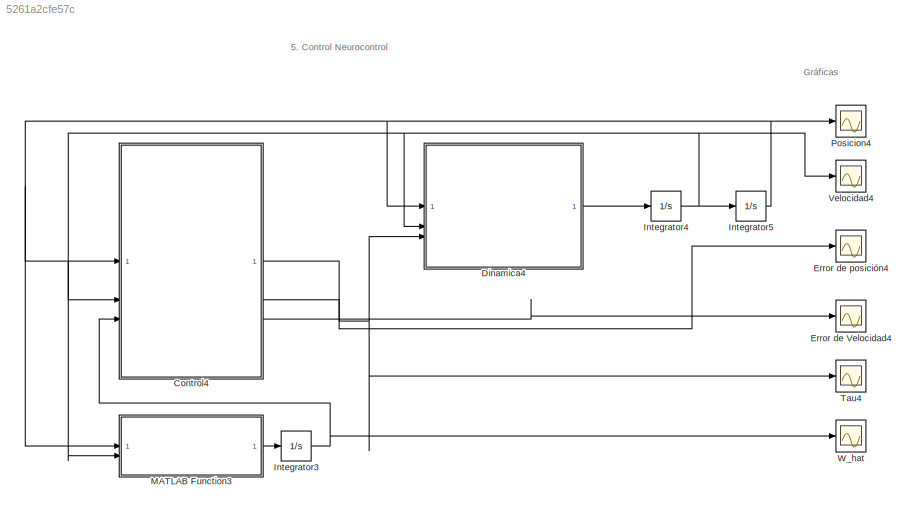
MODEL slx_5261a2cfe57c
KIND model
CONFIG AbsTol = auto
CONFIG EnableMultiTasking = off
CONFIG FixedStep = auto
CONFIG MaxStep = auto
CONFIG MinStep = auto
CONFIG RelTol = 1e-3
CONFIG SampleTimeConstraint = Unconstrained
CONFIG SolverName = VariableStepAuto
CONFIG StartTime = 0.0
CONFIG StopTime = 10.0
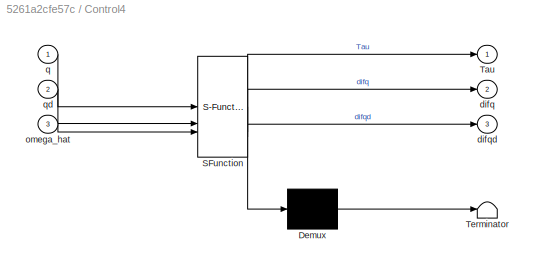
BLOCK [SubSystem] Control4
  ErrorFcn = Stateflow.Translate.translate
  PermitHierarchicalResolution = ExplicitOnly
  SFBlockType = MATLAB Function
  TreatAsAtomicUnit = on
BLOCK [Demux] Control4/ Demux 
  Outputs = 1
BLOCK [S-Function] Control4/ SFunction 
  EnableBusSupport = on
  FunctionName = sf_sfun
  PortCounts = [3 4]
  SFcnIsStateOwnerBlock = off
  SFunctionDeploymentMode = off
  Tag = Stateflow S-Function 10
BLOCK [Terminator] Control4/ Terminator 
BLOCK [Outport] Control4/Tau
BLOCK [Outport] Control4/difq
  Port = 2
BLOCK [Outport] Control4/difqd
  Port = 3
BLOCK [Inport] Control4/omega_hat
  Port = 3
BLOCK [Inport] Control4/q
BLOCK [Inport] Control4/qd
  Port = 2
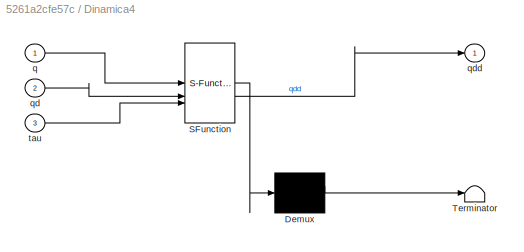
BLOCK [SubSystem] Dinamica4
  ErrorFcn = Stateflow.Translate.translate
  PermitHierarchicalResolution = ExplicitOnly
  SFBlockType = MATLAB Function
  TreatAsAtomicUnit = on
BLOCK [Demux] Dinamica4/ Demux 
  Outputs = 1
BLOCK [S-Function] Dinamica4/ SFunction 
  EnableBusSupport = on
  FunctionName = sf_sfun
  PortCounts = [3 2]
  SFcnIsStateOwnerBlock = off
  SFunctionDeploymentMode = off
  Tag = Stateflow S-Function 11
BLOCK [Terminator] Dinamica4/ Terminator 
BLOCK [Inport] Dinamica4/q
BLOCK [Inport] Dinamica4/qd
  Port = 2
BLOCK [Outport] Dinamica4/qdd
BLOCK [Inport] Dinamica4/tau
  Port = 3
BLOCK [Scope] Error de Velocidad4
  Floating = off
  NumInputPorts = 1
  ScopeSpecificationString = Simulink.scopes.TimeScopeBlockCfg('CurrentConfiguration', extmgr.ConfigurationSet(extmgr.Configuration('Core','General UI',true,'FigureColor',[1 1 1]),extmgr.Configuration('Core','Source UI',true),extmgr.Configuration('Sources','WiredSimulink',true,'DataLoggingVariableName','ScopeData1'),extmgr.Configuration('Visuals','Time Domain',true,'SerializedDisplays',{struct('MinYLimReal','-5.01131','MaxYLi...<+2502ch>
BLOCK [Scope] Error de posición4
  Floating = off
  NumInputPorts = 1
  ScopeSpecificationString = Simulink.scopes.TimeScopeBlockCfg('CurrentConfiguration', extmgr.ConfigurationSet(extmgr.Configuration('Core','General UI',true,'FigureColor',[1 1 1]),extmgr.Configuration('Core','Source UI',true),extmgr.Configuration('Sources','WiredSimulink',true,'DataLoggingVariableName','ScopeData2'),extmgr.Configuration('Visuals','Time Domain',true,'SerializedDisplays',{struct('MinYLimReal','-2.25406','MaxYLi...<+2585ch>
BLOCK [Integrator] Integrator3
BLOCK [Integrator] Integrator4
  InitialCondition = [0;0;0]
BLOCK [Integrator] Integrator5
  InitialCondition = [0;0;0]
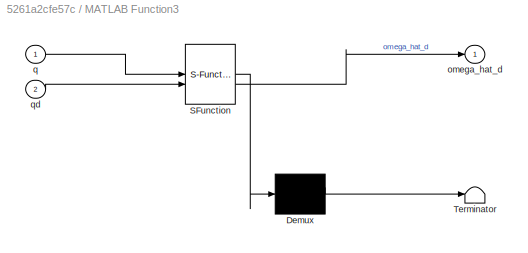
BLOCK [SubSystem] MATLAB Function3
  ErrorFcn = Stateflow.Translate.translate
  PermitHierarchicalResolution = ExplicitOnly
  SFBlockType = MATLAB Function
  TreatAsAtomicUnit = on
BLOCK [Demux] MATLAB Function3/ Demux 
  Outputs = 1
BLOCK [S-Function] MATLAB Function3/ SFunction 
  EnableBusSupport = on
  FunctionName = sf_sfun
  PortCounts = [2 2]
  SFcnIsStateOwnerBlock = off
  SFunctionDeploymentMode = off
  Tag = Stateflow S-Function 12
BLOCK [Terminator] MATLAB Function3/ Terminator 
BLOCK [Outport] MATLAB Function3/omega_hat_d
BLOCK [Inport] MATLAB Function3/q
BLOCK [Inport] MATLAB Function3/qd
  Port = 2
BLOCK [Scope] Posicion4
  Floating = off
  NumInputPorts = 1
  ScopeSpecificationString = Simulink.scopes.TimeScopeBlockCfg('CurrentConfiguration', extmgr.ConfigurationSet(extmgr.Configuration('Core','General UI',true,'FigureColor',[1 1 1]),extmgr.Configuration('Core','Source UI',true),extmgr.Configuration('Sources','WiredSimulink',true,'DataLoggingVariableName','ScopeData3'),extmgr.Configuration('Visuals','Time Domain',true,'SerializedDisplays',{struct('MinYLimReal','-0.07225','MaxYLi...<+2504ch>
BLOCK [Scope] Tau4
  Floating = off
  NumInputPorts = 1
  ScopeSpecificationString = Simulink.scopes.TimeScopeBlockCfg('CurrentConfiguration', extmgr.ConfigurationSet(extmgr.Configuration('Core','General UI',true,'FigureColor',[1 1 1]),extmgr.Configuration('Core','Source UI',true),extmgr.Configuration('Sources','WiredSimulink',true,'DataLoggingVariableName','ScopeData4'),extmgr.Configuration('Visuals','Time Domain',true,'SerializedDisplays',{struct('MinYLimReal','-156.0379','MaxYL...<+2484ch>
BLOCK [Scope] Velocidad4
  Floating = off
  NumInputPorts = 1
  ScopeSpecificationString = Simulink.scopes.TimeScopeBlockCfg('CurrentConfiguration', extmgr.ConfigurationSet(extmgr.Configuration('Core','General UI',true,'FigureColor',[1 1 1]),extmgr.Configuration('Core','Source UI',true),extmgr.Configuration('Sources','WiredSimulink',true,'DataLoggingVariableName','ScopeData5'),extmgr.Configuration('Visuals','Time Domain',true,'SerializedDisplays',{struct('MinYLimReal','-0.69954','MaxYLi...<+2504ch>
BLOCK [Scope] W_hat
  Floating = off
  NumInputPorts = 1
  ScopeSpecificationString = Simulink.scopes.TimeScopeBlockCfg('CurrentConfiguration', extmgr.ConfigurationSet(extmgr.Configuration('Core','General UI',true,'FigureColor',[1 1 1]),extmgr.Configuration('Core','Source UI',true),extmgr.Configuration('Sources','WiredSimulink',true,'DataLoggingVariableName','ScopeData6'),extmgr.Configuration('Visuals','Time Domain',true,'SerializedDisplays',{struct('MinYLimReal','-22.65619','MaxYL...<+2888ch>
ANNOTATION (root): 5. Control Neurocontrol
ANNOTATION (root): Gráficas
NET Control4:1 -> Dinamica4:3, Tau4:1
LINE Control4:2 -> Error de posición4:1
LINE Control4:3 -> Error de Velocidad4:1
LINE Dinamica4:1 -> Integrator4:1
NET Integrator3:1 -> Control4:3, W_hat:1
NET Integrator4:1 -> Control4:2, Dinamica4:2, Integrator5:1, MATLAB Function3:2, Velocidad4:1
NET Integrator5:1 -> Control4:1, Dinamica4:1, MATLAB Function3:1, Posicion4:1
LINE MATLAB Function3:1 -> Integrator3:1
note: NET lines group one-source signal fan-out (src -> all destinations, sorted); 1:1 wires keep LINE
CHART Control4 states=1 transitions=1
  STATE_LABEL 'eML_blk_kernel()'
  STATE_LABEL "SCRIPT:\nfunction [Tau, difq, difqd] = fcn(q,qd,omega_hat)\n\nkd=diag([15 15 15]);\n\nalpha = diag([5 5 5]);\n\nq_deseada = [0.3;0.4;0.5];\nqd_deseada = [0;0;0];\ndifq = q-q_deseada;\ndifqd = qd-qd_deseada;\n\nS = difqd+alpha*difq;\n\nphi = [difq; difqd; q_deseada; qd_deseada; S];\n\nTau = -kd*S+omega_hat.'*phi;\n"
CHART Dinamica4 states=1 transitions=1
  STATE_LABEL 'eML_blk_kernel()'
  STATE_LABEL 'SCRIPT:\nfunction qdd = fcn(q, qd, tau)\n\nq1=q(1);\nq2=q(2);\nq3=q(3);\nq1_d=qd(1);\nq2_d=qd(2);\nq3_d=qd(3);\n\nm1 = 1;\nm2 = 1;\nm3 = 1;\nl1 = 1;\nl2 = 1;\nl3 = 1;\nlc1 = 0.5;\nlc2 = 0.5;\nlc3 = 0.5;\nIxx1 = 0.02;\nIxx2 = 0.02;\nIxx3 = 0.02;\nIyy1 = 0.02;\nIyy2 = 0.02;\nIyy3 = 0.02;\nIzz1 = 0.02;\nIzz2 = 0.02;\nIzz3 = 0.02;\n\ng = 9.81;\n\nH = [Iyy1 + Ixx3*(cos(q2)*sin(q3) + cos(q3)*sin(q2))^2 + Iyy3*(cos(q2)*cos(q3) - sin(q...<+3608ch>'
CHART MATLAB Function3 states=1 transitions=1
  STATE_LABEL 'eML_blk_kernel()'
  STATE_LABEL "SCRIPT:\nfunction omega_hat_d  = fcn(q,qd)\n\nalpha = diag([5 5 5]);\nGamma = diag([1 1 1 1 1 1 1 1 1 1 1 1 1 1 1])*50;\n\nq_deseada = [0.3;0.4;0.5];\nqd_deseada = [0;0;0];\ndifq = q-q_deseada;\ndifqd = qd-qd_deseada;\n\nS = difqd+alpha*difq;\n\nphi = [difq; difqd; q_deseada; qd_deseada; S];\n\nomega_hat_d = -Gamma*phi*S.';"
CHART  states=0 transitions=0
CHART  states=0 transitions=0
CHART  states=0 transitions=0
